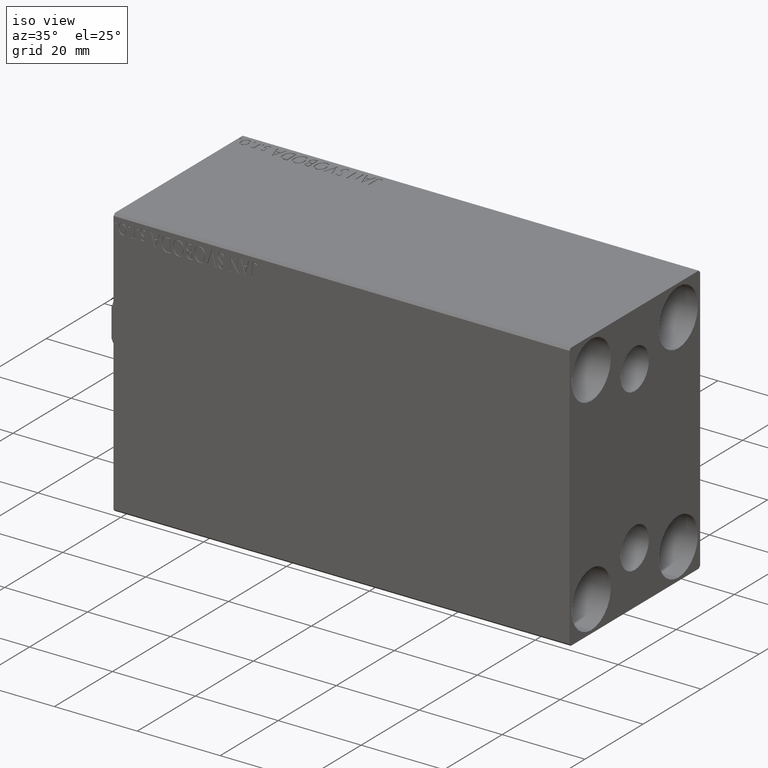
[diagram: clean part render]
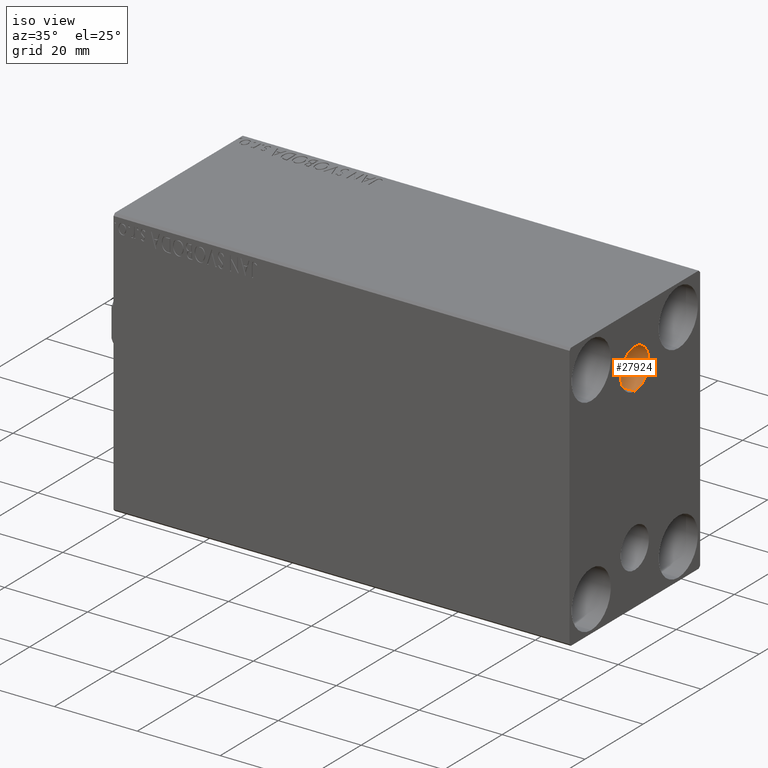
[diagram: same view with one face highlighted and labeled with its STEP entity id]
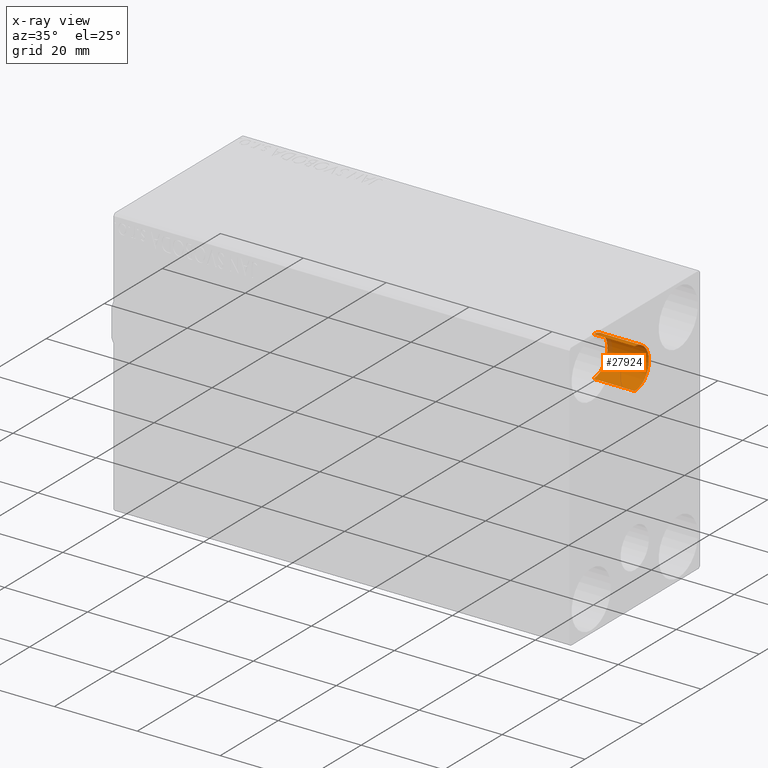
[diagram: x-ray of the same camera — body ghosted, the highlighted face saturated]
A machine part, iso view. The second image highlights one B-rep face of the part: STEP entity #27924.
The next image is the same camera in x-ray: the body ghosted, the highlighted face saturated — about 6% of this face is hidden behind the body in this view.
In plain terms, the highlighted cylindrical surface (edge-blend (fillet) strip) has radius 4.86 mm, axis along (1, 0, 0).
Its self-contained STEP definition (entity closure, byte-faithful):
#14 = EDGE_CURVE ( 'NONE', #30106, #28129, #17883, .T. ) ;
#565 = FACE_OUTER_BOUND ( 'NONE', #24111, .T. ) ;
#2322 = CARTESIAN_POINT ( 'NONE',  ( 100.0000000000000000, -3.571693674697836683E-15, 14.64000000000000412 ) ) ;
#3249 = CARTESIAN_POINT ( 'NONE',  ( 100.0000000000000000, -3.571693674697836683E-15, 19.50000000000000355 ) ) ;
#4924 = CARTESIAN_POINT ( 'NONE',  ( 100.0000000000000000, -2.976515330312223406E-15, 24.36000000000000298 ) ) ;
#5634 = CARTESIAN_POINT ( 'NONE',  ( 110.0000000000000000, -2.976515330312223406E-15, 24.36000000000000298 ) ) ;
#5950 = DIRECTION ( 'NONE',  ( 0.000000000000000000, 0.000000000000000000, -1.000000000000000000 ) ) ;
#6888 = VERTEX_POINT ( 'NONE', #9223 ) ;
#6948 = CARTESIAN_POINT ( 'NONE',  ( 100.0000000000000000, -2.976515330312223406E-15, 24.36000000000000298 ) ) ;
#7269 = VERTEX_POINT ( 'NONE', #4924 ) ;
#8346 = EDGE_CURVE ( 'NONE', #7269, #28129, #26874, .T. ) ;
#9223 = CARTESIAN_POINT ( 'NONE',  ( 100.0000000000000000, -3.571693674697836683E-15, 14.64000000000000412 ) ) ;
#10146 = VECTOR ( 'NONE', #23122, 1000.000000000000000 ) ;
#10584 = ORIENTED_EDGE ( 'NONE', *, *, #12947, .F. ) ;
#10715 = DIRECTION ( 'NONE',  ( 0.000000000000000000, 0.000000000000000000, -1.000000000000000000 ) ) ;
#10981 = DIRECTION ( 'NONE',  ( 1.000000000000000000, -0.000000000000000000, -0.000000000000000000 ) ) ;
#11050 = VECTOR ( 'NONE', #20875, 1000.000000000000000 ) ;
#12947 = EDGE_CURVE ( 'NONE', #6888, #7269, #37275, .T. ) ;
#13816 = DIRECTION ( 'NONE',  ( 1.000000000000000000, 0.000000000000000000, 0.000000000000000000 ) ) ;
#14286 = CYLINDRICAL_SURFACE ( 'NONE', #42564, 4.859999999999999432 ) ;
#15169 = ORIENTED_EDGE ( 'NONE', *, *, #14, .T. ) ;
#15385 = AXIS2_PLACEMENT_3D ( 'NONE', #37948, #13816, #10715 ) ;
#17883 = CIRCLE ( 'NONE', #28498, 4.859999999999999432 ) ;
#20875 = DIRECTION ( 'NONE',  ( 1.000000000000000000, -0.000000000000000000, -0.000000000000000000 ) ) ;
#23122 = DIRECTION ( 'NONE',  ( 1.000000000000000000, -0.000000000000000000, -0.000000000000000000 ) ) ;
#23595 = DIRECTION ( 'NONE',  ( 0.000000000000000000, 0.000000000000000000, -1.000000000000000000 ) ) ;
#24111 = EDGE_LOOP ( 'NONE', ( #40339, #10584, #33322, #15169 ) ) ;
#26013 = LINE ( 'NONE', #2322, #10146 ) ;
#26874 = LINE ( 'NONE', #6948, #11050 ) ;
#27924 = ADVANCED_FACE ( 'NONE', ( #565 ), #14286, .F. ) ;
#28129 = VERTEX_POINT ( 'NONE', #5634 ) ;
#28498 = AXIS2_PLACEMENT_3D ( 'NONE', #43163, #33399, #5950 ) ;
#30106 = VERTEX_POINT ( 'NONE', #31657 ) ;
#31657 = CARTESIAN_POINT ( 'NONE',  ( 110.0000000000000000, -3.571693674697836683E-15, 14.64000000000000412 ) ) ;
#32035 = EDGE_CURVE ( 'NONE', #6888, #30106, #26013, .T. ) ;
#33322 = ORIENTED_EDGE ( 'NONE', *, *, #32035, .T. ) ;
#33399 = DIRECTION ( 'NONE',  ( 1.000000000000000000, 0.000000000000000000, 0.000000000000000000 ) ) ;
#37275 = CIRCLE ( 'NONE', #15385, 4.859999999999999432 ) ;
#37948 = CARTESIAN_POINT ( 'NONE',  ( 100.0000000000000000, -3.571693674697836683E-15, 19.50000000000000355 ) ) ;
#40339 = ORIENTED_EDGE ( 'NONE', *, *, #8346, .F. ) ;
#42564 = AXIS2_PLACEMENT_3D ( 'NONE', #3249, #10981, #23595 ) ;
#43163 = CARTESIAN_POINT ( 'NONE',  ( 110.0000000000000000, -3.571693674697836683E-15, 19.50000000000000355 ) ) ;